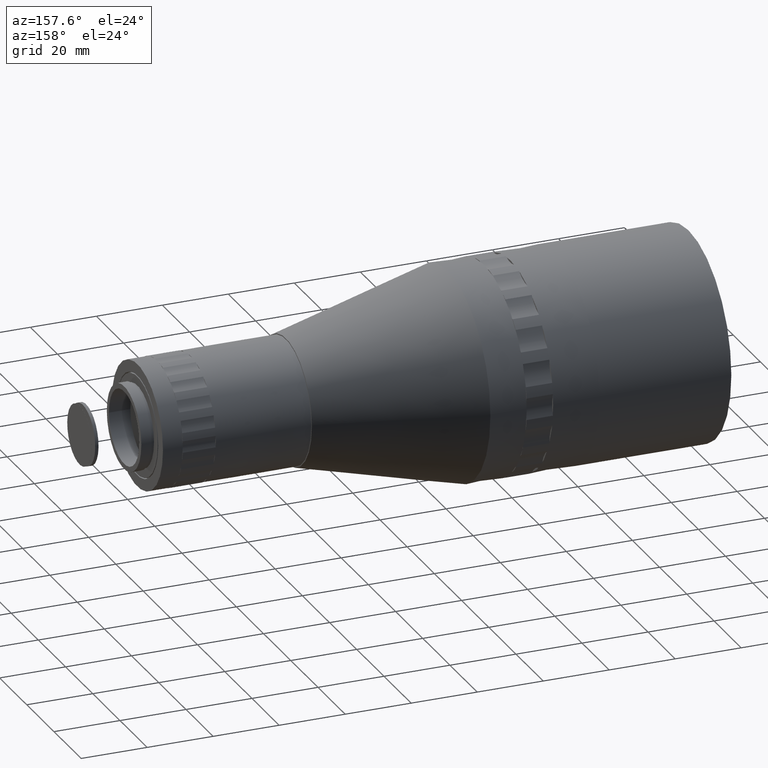
[diagram: clean part render]
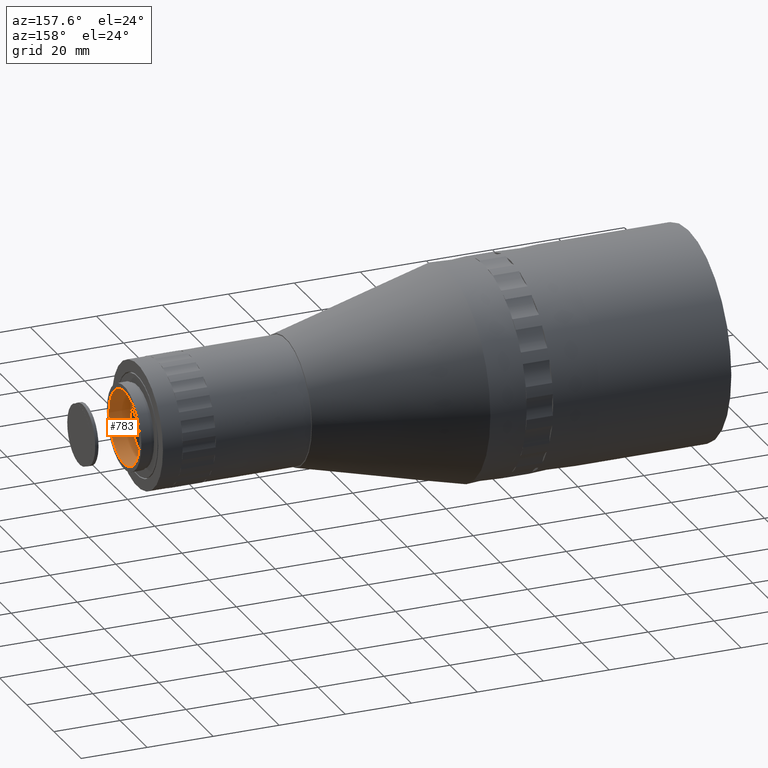
[diagram: same view with one face highlighted and labeled with its STEP entity id]
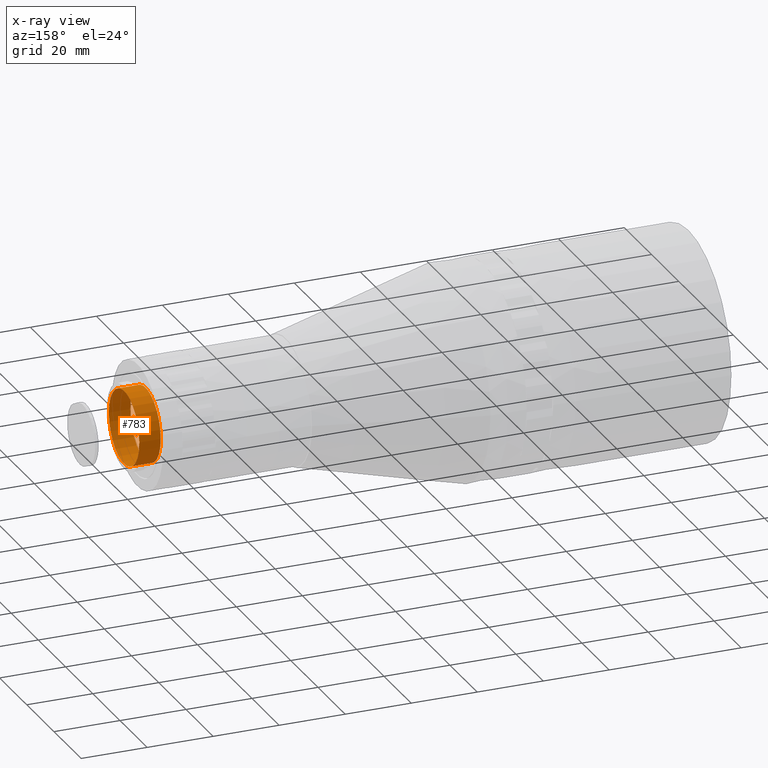
[diagram: x-ray of the same camera — body ghosted, the highlighted face saturated]
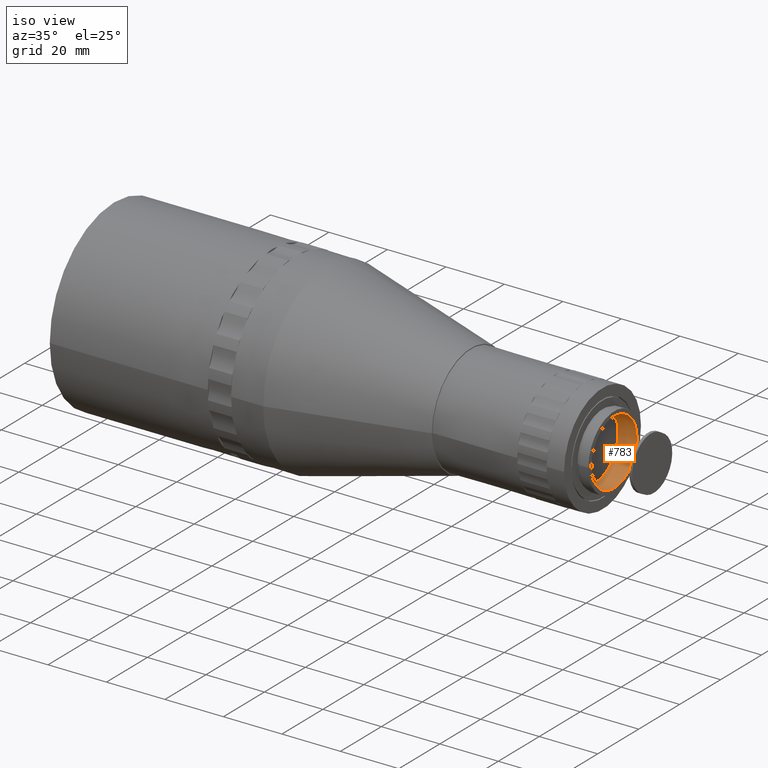
[diagram: same view with one face highlighted and labeled with its STEP entity id]
A machine part, auxiliary view. The second image highlights one B-rep face of the part: STEP entity #783.
The next image is the same camera in x-ray: the body ghosted, the highlighted face saturated — about 0% of this face is hidden behind the body in this view.
A second angle (iso view) of the same face is appended — the face is thin or edge-on in the first view.
In plain terms, the highlighted cylindrical surface (bore or boss wall) has radius 11.1522 mm, axis along (-1, -0, -0).
Its self-contained STEP definition (entity closure, byte-faithful):
#289 = EDGE_CURVE ( 'NONE', #3225, #3225, #1306, .T. ) ;
#491 = AXIS2_PLACEMENT_3D ( 'NONE', #2438, #2092, #3516 ) ;
#513 = CARTESIAN_POINT ( 'NONE',  ( 105.1464993760373829, 5.711987127917019791, -0.6039616615827261281 ) ) ;
#779 = FACE_OUTER_BOUND ( 'NONE', #4419, .T. ) ;
#783 = ADVANCED_FACE ( 'NONE', ( #1496, #779 ), #3188, .F. ) ;
#966 = ORIENTED_EDGE ( 'NONE', *, *, #289, .F. ) ;
#1180 = EDGE_LOOP ( 'NONE', ( #2747 ) ) ;
#1306 = CIRCLE ( 'NONE', #491, 11.15224719101122020 ) ;
#1336 = EDGE_CURVE ( 'NONE', #1509, #1509, #2526, .T. ) ;
#1496 = FACE_OUTER_BOUND ( 'NONE', #1180, .T. ) ;
#1509 = VERTEX_POINT ( 'NONE', #3622 ) ;
#2092 = DIRECTION ( 'NONE',  ( -1.000000000000000000, -1.226679102604723662E-16, -0.000000000000000000 ) ) ;
#2305 = DIRECTION ( 'NONE',  ( 0.000000000000000000, -1.000000000000000000, 0.000000000000000000 ) ) ;
#2438 = CARTESIAN_POINT ( 'NONE',  ( 111.6464993760373972, 5.711987127917020679, -0.6039616615827261281 ) ) ;
#2526 = CIRCLE ( 'NONE', #3197, 11.15224719101122020 ) ;
#2747 = ORIENTED_EDGE ( 'NONE', *, *, #1336, .T. ) ;
#2923 = CARTESIAN_POINT ( 'NONE',  ( -59.36906378044780297, 5.711987127917000251, -0.6039616615827261281 ) ) ;
#3027 = AXIS2_PLACEMENT_3D ( 'NONE', #2923, #4304, #3932 ) ;
#3188 = CYLINDRICAL_SURFACE ( 'NONE', #3027, 11.15224719101122197 ) ;
#3197 = AXIS2_PLACEMENT_3D ( 'NONE', #513, #4056, #2305 ) ;
#3225 = VERTEX_POINT ( 'NONE', #4297 ) ;
#3516 = DIRECTION ( 'NONE',  ( 0.000000000000000000, -1.000000000000000000, 0.000000000000000000 ) ) ;
#3622 = CARTESIAN_POINT ( 'NONE',  ( 105.1464993760373829, -5.440260063094199516, -0.6039616615827261281 ) ) ;
#3932 = DIRECTION ( 'NONE',  ( 0.000000000000000000, -1.000000000000000000, 0.000000000000000000 ) ) ;
#4056 = DIRECTION ( 'NONE',  ( -1.000000000000000000, -1.226679102604723662E-16, -0.000000000000000000 ) ) ;
#4297 = CARTESIAN_POINT ( 'NONE',  ( 111.6464993760373972, -5.440260063094198628, -0.6039616615827261281 ) ) ;
#4304 = DIRECTION ( 'NONE',  ( -1.000000000000000000, -1.226679102604723662E-16, -0.000000000000000000 ) ) ;
#4419 = EDGE_LOOP ( 'NONE', ( #966 ) ) ;